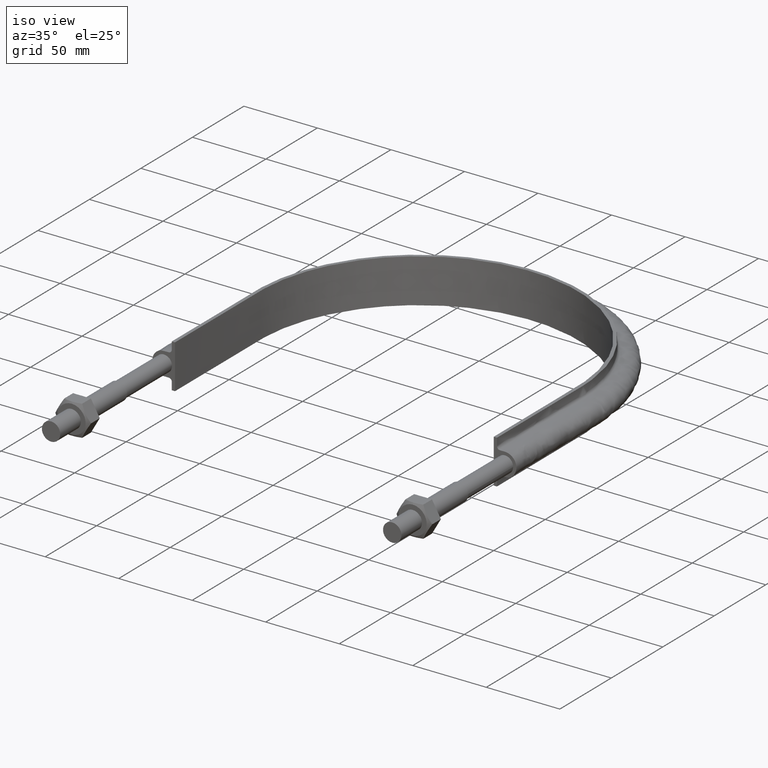
[diagram: clean part render]
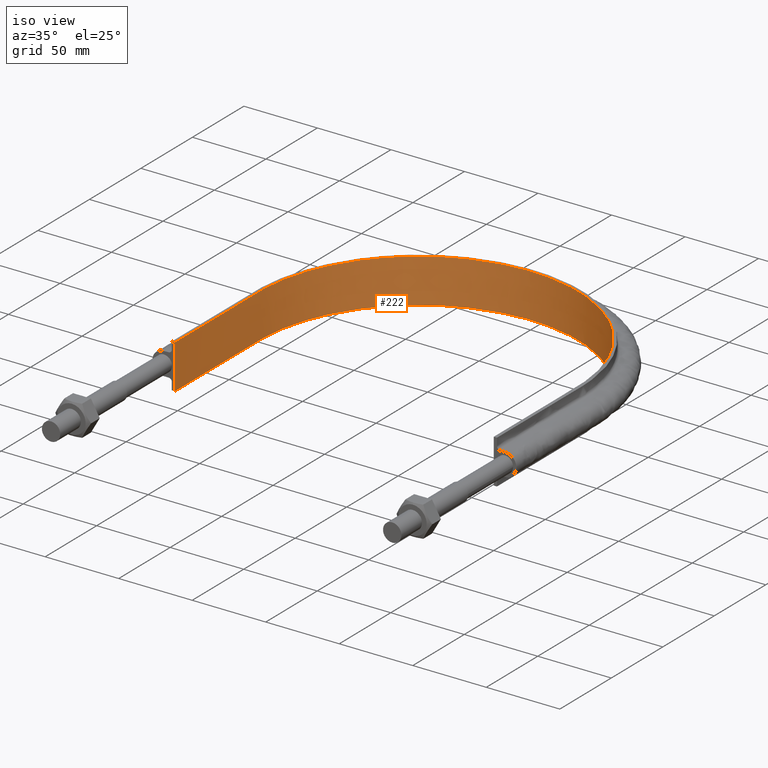
[diagram: same view with one face highlighted and labeled with its STEP entity id]
A machine part, iso view. The second image highlights one B-rep face of the part: STEP entity #222.
In plain terms, the highlighted face is a SurfaceOfExtrusion surface.
Its self-contained STEP definition (entity closure, byte-faithful):
#222 = ADVANCED_FACE( '', ( #269 ), #270, .T. );
#269 = FACE_OUTER_BOUND( '', #557, .T. );
#270 = SURFACE_OF_LINEAR_EXTRUSION( '', #558, #559 );
#557 = EDGE_LOOP( '', ( #1381, #1382, #1383, #1384 ) );
#558 = B_SPLINE_CURVE_WITH_KNOTS( '', 3, ( #1385, #1386, #1387, #1388, #1389, #1390, #1391, #1392, #1393, #1394, #1395, #1396, #1397, #1398, #1399, #1400, #1401 ), .UNSPECIFIED., .F., .F., ( 4, 3, 1, 1, 1, 1, 1, 1, 1, 3, 4 ), ( -10.0000000000000, -9.00000000000000, -8.00000000000000, -7.00000000000000, -6.00000000000000, -5.00000000000000, -4.00000000000000, -3.00000000000000, -2.00000000000000, -1.00000000000000, 0.000000000000000 ), .UNSPECIFIED. );
#559 = VECTOR( '', #1402, 1000.00000000000 );
#1381 = ORIENTED_EDGE( '', *, *, #1663, .F. );
#1382 = ORIENTED_EDGE( '', *, *, #1653, .F. );
#1383 = ORIENTED_EDGE( '', *, *, #1664, .T. );
#1384 = ORIENTED_EDGE( '', *, *, #1659, .T. );
#1385 = CARTESIAN_POINT( '', ( -108.400000000000, 109.500000000000, -338.759662970140 ) );
#1386 = CARTESIAN_POINT( '', ( -108.400000000000, 136.866666666667, -338.759662970140 ) );
#1387 = CARTESIAN_POINT( '', ( -108.400000000000, 164.233333333333, -338.759662970140 ) );
#1388 = CARTESIAN_POINT( '', ( -108.400000000000, 191.600000000000, -338.759662970140 ) );
#1389 = CARTESIAN_POINT( '', ( -108.400000000000, 205.774498518656, -338.759662970140 ) );
#1390 = CARTESIAN_POINT( '', ( -102.755814879494, 234.168943035043, -338.759662970140 ) );
#1391 = CARTESIAN_POINT( '', ( -78.6458958671129, 270.244256009620, -338.759662970140 ) );
#1392 = CARTESIAN_POINT( '', ( -42.5628521357854, 294.356283410206, -338.759662970140 ) );
#1393 = CARTESIAN_POINT( '', ( 7.87171205978664E-014, 302.821858294897, -338.759662970140 ) );
#1394 = CARTESIAN_POINT( '', ( 42.5628521357854, 294.356283410206, -338.759662970140 ) );
#1395 = CARTESIAN_POINT( '', ( 78.6458958671129, 270.244256009621, -338.759662970140 ) );
#1396 = CARTESIAN_POINT( '', ( 102.755814879494, 234.168943035043, -338.759662970140 ) );
#1397 = CARTESIAN_POINT( '', ( 108.400000000000, 205.774498518656, -338.759662970140 ) );
#1398 = CARTESIAN_POINT( '', ( 108.400000000000, 191.600000000000, -338.759662970140 ) );
#1399 = CARTESIAN_POINT( '', ( 108.400000000000, 164.233333333333, -338.759662970140 ) );
#1400 = CARTESIAN_POINT( '', ( 108.400000000000, 136.866666666667, -338.759662970140 ) );
#1401 = CARTESIAN_POINT( '', ( 108.400000000000, 109.500000000000, -338.759662970140 ) );
#1402 = DIRECTION( '', ( 0.000000000000000, 0.000000000000000, 1.00000000000000 ) );
#1653 = EDGE_CURVE( '', #1735, #1736, #1737, .T. );
#1659 = EDGE_CURVE( '', #1747, #1748, #1749, .T. );
#1663 = EDGE_CURVE( '', #1736, #1748, #1755, .T. );
#1664 = EDGE_CURVE( '', #1735, #1747, #1756, .T. );
#1735 = VERTEX_POINT( '', #1883 );
#1736 = VERTEX_POINT( '', #1884 );
#1737 = LINE( '', #1885, #1886 );
#1747 = VERTEX_POINT( '', #1948 );
#1748 = VERTEX_POINT( '', #1949 );
#1749 = LINE( '', #1950, #1951 );
#1755 = B_SPLINE_CURVE_WITH_KNOTS( '', 3, ( #1989, #1990, #1991, #1992, #1993, #1994, #1995, #1996, #1997, #1998, #1999, #2000, #2001, #2002, #2003, #2004, #2005 ), .UNSPECIFIED., .F., .F., ( 4, 3, 1, 1, 1, 1, 1, 1, 1, 3, 4 ), ( -10.0000000000000, -9.00000000000000, -8.00000000000000, -7.00000000000000, -6.00000000000000, -5.00000000000000, -4.00000000000000, -3.00000000000000, -2.00000000000000, -1.00000000000000, 0.000000000000000 ), .UNSPECIFIED. );
#1756 = B_SPLINE_CURVE_WITH_KNOTS( '', 3, ( #2006, #2007, #2008, #2009, #2010, #2011, #2012, #2013, #2014, #2015, #2016, #2017, #2018, #2019, #2020, #2021, #2022 ), .UNSPECIFIED., .F., .F., ( 4, 3, 1, 1, 1, 1, 1, 1, 1, 3, 4 ), ( -10.0000000000000, -9.00000000000000, -8.00000000000000, -7.00000000000000, -6.00000000000000, -5.00000000000000, -4.00000000000000, -3.00000000000000, -2.00000000000000, -1.00000000000000, 0.000000000000000 ), .UNSPECIFIED. );
#1883 = CARTESIAN_POINT( '', ( -108.400000000000, 109.500000000000, -15.0000000000000 ) );
#1884 = CARTESIAN_POINT( '', ( -108.400000000000, 109.500000000000, 15.0000000000000 ) );
#1885 = CARTESIAN_POINT( '', ( -108.400000000000, 109.500000000000, -338.759662970140 ) );
#1886 = VECTOR( '', #2385, 1000.00000000000 );
#1948 = CARTESIAN_POINT( '', ( 108.400000000000, 109.500000000000, -15.0000000000000 ) );
#1949 = CARTESIAN_POINT( '', ( 108.400000000000, 109.500000000000, 15.0000000000000 ) );
#1950 = CARTESIAN_POINT( '', ( 108.400000000000, 109.500000000000, -338.759662970140 ) );
#1951 = VECTOR( '', #2388, 1000.00000000000 );
#1989 = CARTESIAN_POINT( '', ( -108.400000000000, 109.500000000000, 15.0000000000001 ) );
#1990 = CARTESIAN_POINT( '', ( -108.400000000000, 136.866666666667, 15.0000000000001 ) );
#1991 = CARTESIAN_POINT( '', ( -108.400000000000, 164.233333333333, 15.0000000000001 ) );
#1992 = CARTESIAN_POINT( '', ( -108.400000000000, 191.600000000000, 15.0000000000001 ) );
#1993 = CARTESIAN_POINT( '', ( -108.400000000000, 205.774498518656, 15.0000000000001 ) );
#1994 = CARTESIAN_POINT( '', ( -102.755814879494, 234.168943035043, 15.0000000000001 ) );
#1995 = CARTESIAN_POINT( '', ( -78.6458958671129, 270.244256009620, 15.0000000000001 ) );
#1996 = CARTESIAN_POINT( '', ( -42.5628521357854, 294.356283410206, 15.0000000000001 ) );
#1997 = CARTESIAN_POINT( '', ( 7.87171205978664E-014, 302.821858294897, 15.0000000000001 ) );
#1998 = CARTESIAN_POINT( '', ( 42.5628521357854, 294.356283410206, 15.0000000000001 ) );
#1999 = CARTESIAN_POINT( '', ( 78.6458958671129, 270.244256009621, 15.0000000000001 ) );
#2000 = CARTESIAN_POINT( '', ( 102.755814879494, 234.168943035043, 15.0000000000001 ) );
#2001 = CARTESIAN_POINT( '', ( 108.400000000000, 205.774498518656, 15.0000000000001 ) );
#2002 = CARTESIAN_POINT( '', ( 108.400000000000, 191.600000000000, 15.0000000000001 ) );
#2003 = CARTESIAN_POINT( '', ( 108.400000000000, 164.233333333333, 15.0000000000001 ) );
#2004 = CARTESIAN_POINT( '', ( 108.400000000000, 136.866666666667, 15.0000000000001 ) );
#2005 = CARTESIAN_POINT( '', ( 108.400000000000, 109.500000000000, 15.0000000000001 ) );
#2006 = CARTESIAN_POINT( '', ( -108.400000000000, 109.500000000000, -15.0000000000000 ) );
#2007 = CARTESIAN_POINT( '', ( -108.400000000000, 136.866666666667, -15.0000000000000 ) );
#2008 = CARTESIAN_POINT( '', ( -108.400000000000, 164.233333333333, -15.0000000000000 ) );
#2009 = CARTESIAN_POINT( '', ( -108.400000000000, 191.600000000000, -15.0000000000000 ) );
#2010 = CARTESIAN_POINT( '', ( -108.400000000000, 205.774498518656, -15.0000000000000 ) );
#2011 = CARTESIAN_POINT( '', ( -102.755814879494, 234.168943035043, -15.0000000000000 ) );
#2012 = CARTESIAN_POINT( '', ( -78.6458958671129, 270.244256009620, -15.0000000000000 ) );
#2013 = CARTESIAN_POINT( '', ( -42.5628521357854, 294.356283410206, -15.0000000000000 ) );
#2014 = CARTESIAN_POINT( '', ( 7.87171205978664E-014, 302.821858294897, -15.0000000000000 ) );
#2015 = CARTESIAN_POINT( '', ( 42.5628521357854, 294.356283410206, -15.0000000000000 ) );
#2016 = CARTESIAN_POINT( '', ( 78.6458958671129, 270.244256009621, -15.0000000000000 ) );
#2017 = CARTESIAN_POINT( '', ( 102.755814879494, 234.168943035043, -15.0000000000000 ) );
#2018 = CARTESIAN_POINT( '', ( 108.400000000000, 205.774498518656, -15.0000000000000 ) );
#2019 = CARTESIAN_POINT( '', ( 108.400000000000, 191.600000000000, -15.0000000000000 ) );
#2020 = CARTESIAN_POINT( '', ( 108.400000000000, 164.233333333333, -15.0000000000000 ) );
#2021 = CARTESIAN_POINT( '', ( 108.400000000000, 136.866666666667, -15.0000000000000 ) );
#2022 = CARTESIAN_POINT( '', ( 108.400000000000, 109.500000000000, -15.0000000000000 ) );
#2385 = DIRECTION( '', ( 0.000000000000000, 0.000000000000000, 1.00000000000000 ) );
#2388 = DIRECTION( '', ( 0.000000000000000, 0.000000000000000, 1.00000000000000 ) );